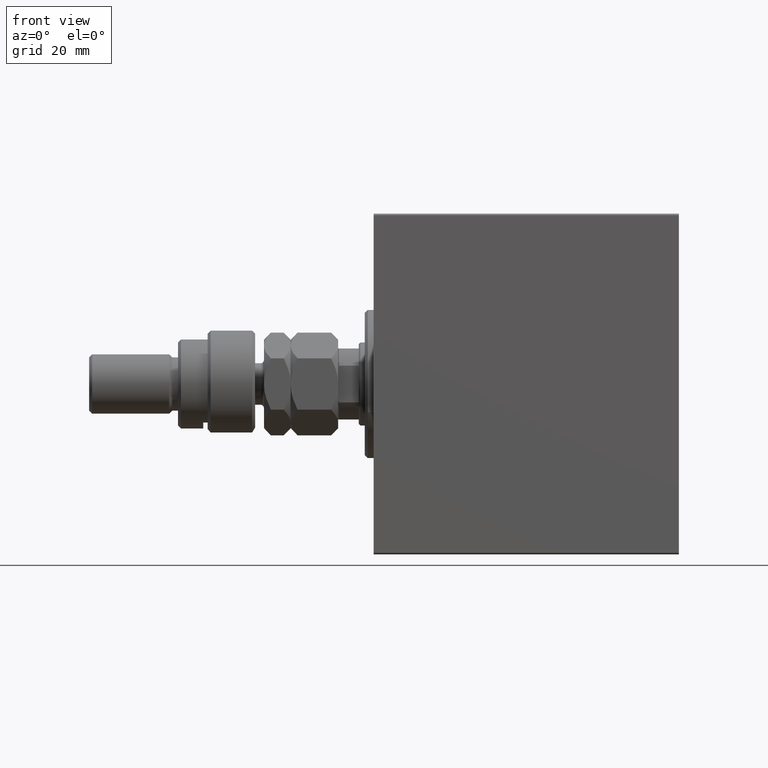
[diagram: clean part render]
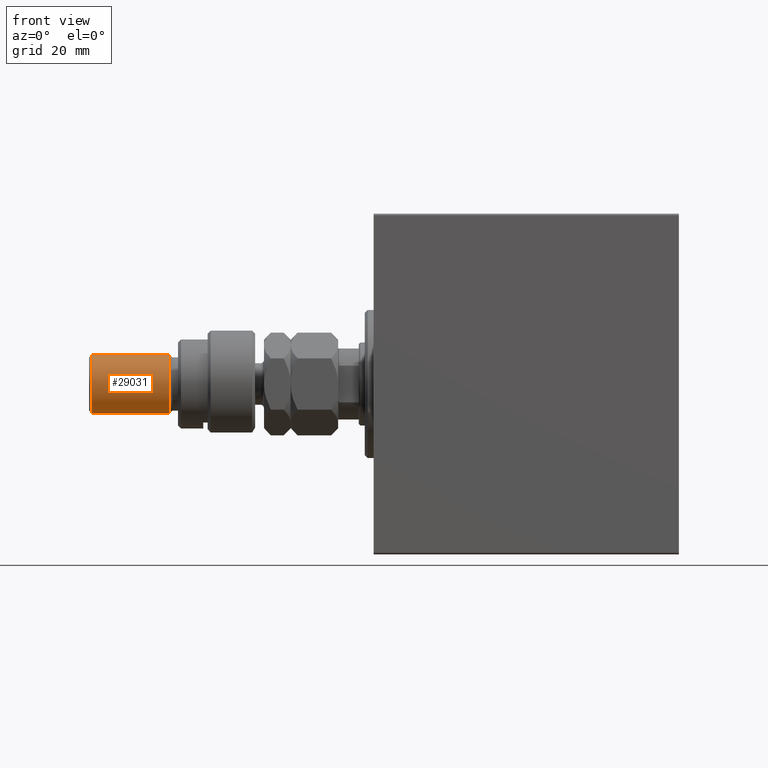
[diagram: same view with one face highlighted and labeled with its STEP entity id]
A machine part, front view. The second image highlights one B-rep face of the part: STEP entity #29031.
In plain terms, the highlighted cylindrical surface (edge-blend (fillet) strip) has radius 10 mm, axis along (1, -0, -0).
Its self-contained STEP definition (entity closure, byte-faithful):
#43 = CARTESIAN_POINT ( 'NONE',  ( 10.00000000000000000, 1.224646799147353256E-15, 56.00000000000000711 ) ) ;
#3799 = DIRECTION ( 'NONE',  ( -0.000000000000000000, -0.000000000000000000, -1.000000000000000000 ) ) ;
#4677 = VECTOR ( 'NONE', #16207, 1000.000000000000000 ) ;
#7018 = DIRECTION ( 'NONE',  ( 1.000000000000000000, 0.000000000000000000, 0.000000000000000000 ) ) ;
#8155 = CARTESIAN_POINT ( 'NONE',  ( 10.00000000000000000, 1.224646799147353256E-15, 29.00000000000000711 ) ) ;
#8408 = ORIENTED_EDGE ( 'NONE', *, *, #29408, .F. ) ;
#9365 = EDGE_CURVE ( 'NONE', #12771, #16272, #29872, .T. ) ;
#10697 = VERTEX_POINT ( 'NONE', #15061 ) ;
#12680 = LINE ( 'NONE', #15744, #4677 ) ;
#12771 = VERTEX_POINT ( 'NONE', #13706 ) ;
#12839 = CYLINDRICAL_SURFACE ( 'NONE', #24928, 10.00000000000000000 ) ;
#12955 = EDGE_LOOP ( 'NONE', ( #8408, #22104, #22379, #25478 ) ) ;
#13706 = CARTESIAN_POINT ( 'NONE',  ( -10.00000000000000000, 0.000000000000000000, 29.00000000000000711 ) ) ;
#13785 = CARTESIAN_POINT ( 'NONE',  ( 10.00000000000000000, 1.224646799147353256E-15, 54.99999999999998579 ) ) ;
#15061 = CARTESIAN_POINT ( 'NONE',  ( -10.00000000000000000, 0.000000000000000000, 54.99999999999998579 ) ) ;
#15744 = CARTESIAN_POINT ( 'NONE',  ( -10.00000000000000000, 0.000000000000000000, 56.00000000000000711 ) ) ;
#16207 = DIRECTION ( 'NONE',  ( -0.000000000000000000, -0.000000000000000000, -1.000000000000000000 ) ) ;
#16272 = VERTEX_POINT ( 'NONE', #8155 ) ;
#17062 = AXIS2_PLACEMENT_3D ( 'NONE', #28943, #36477, #39815 ) ;
#17377 = DIRECTION ( 'NONE',  ( 0.000000000000000000, 0.000000000000000000, -1.000000000000000000 ) ) ;
#20126 = FACE_OUTER_BOUND ( 'NONE', #12955, .T. ) ;
#22104 = ORIENTED_EDGE ( 'NONE', *, *, #43705, .T. ) ;
#22379 = ORIENTED_EDGE ( 'NONE', *, *, #32461, .T. ) ;
#23434 = DIRECTION ( 'NONE',  ( -0.000000000000000000, -0.000000000000000000, -1.000000000000000000 ) ) ;
#23684 = CIRCLE ( 'NONE', #38002, 10.00000000000000000 ) ;
#24928 = AXIS2_PLACEMENT_3D ( 'NONE', #30508, #23434, #41165 ) ;
#25478 = ORIENTED_EDGE ( 'NONE', *, *, #9365, .T. ) ;
#28943 = CARTESIAN_POINT ( 'NONE',  ( 0.000000000000000000, 0.000000000000000000, 29.00000000000000711 ) ) ;
#29031 = ADVANCED_FACE ( 'NONE', ( #20126 ), #12839, .T. ) ;
#29408 = EDGE_CURVE ( 'NONE', #43075, #16272, #44116, .T. ) ;
#29872 = CIRCLE ( 'NONE', #17062, 10.00000000000000000 ) ;
#30508 = CARTESIAN_POINT ( 'NONE',  ( 0.000000000000000000, 0.000000000000000000, 56.00000000000000711 ) ) ;
#32225 = CARTESIAN_POINT ( 'NONE',  ( 0.000000000000000000, 0.000000000000000000, 54.99999999999998579 ) ) ;
#32429 = VECTOR ( 'NONE', #3799, 1000.000000000000000 ) ;
#32461 = EDGE_CURVE ( 'NONE', #10697, #12771, #12680, .T. ) ;
#36477 = DIRECTION ( 'NONE',  ( -0.000000000000000000, -0.000000000000000000, 1.000000000000000000 ) ) ;
#38002 = AXIS2_PLACEMENT_3D ( 'NONE', #32225, #17377, #7018 ) ;
#39815 = DIRECTION ( 'NONE',  ( 1.000000000000000000, 0.000000000000000000, 0.000000000000000000 ) ) ;
#41165 = DIRECTION ( 'NONE',  ( -1.000000000000000000, 0.000000000000000000, 0.000000000000000000 ) ) ;
#43075 = VERTEX_POINT ( 'NONE', #13785 ) ;
#43705 = EDGE_CURVE ( 'NONE', #43075, #10697, #23684, .T. ) ;
#44116 = LINE ( 'NONE', #43, #32429 ) ;